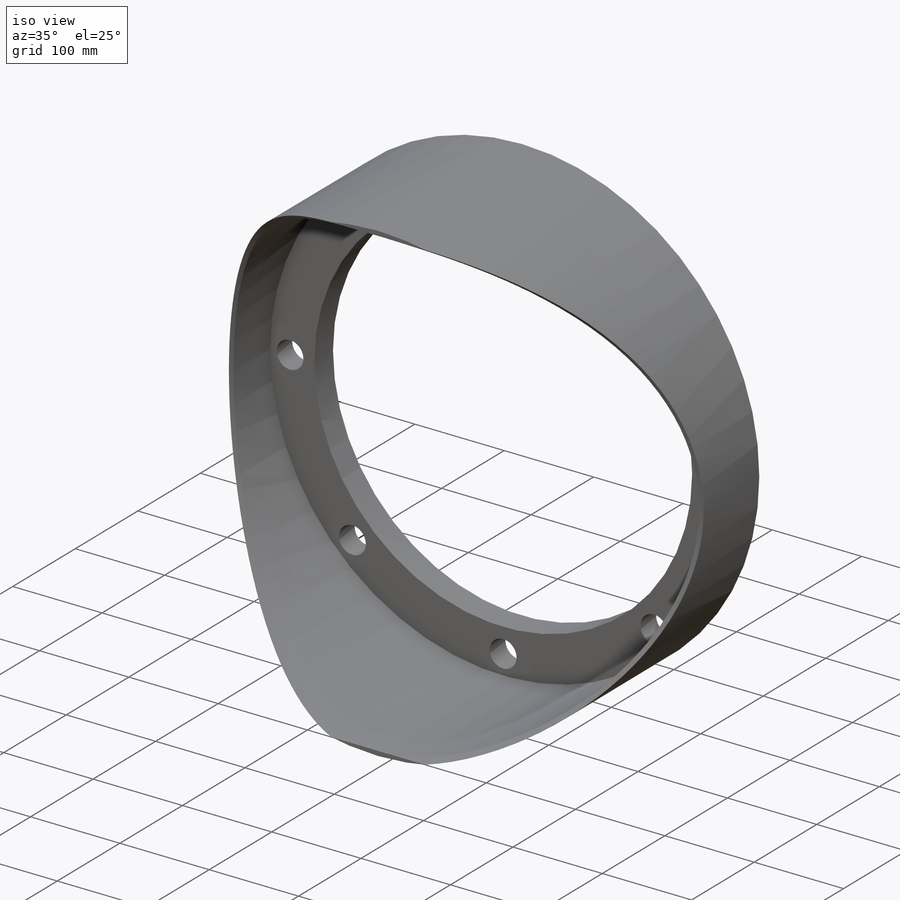
[diagram: iso view]
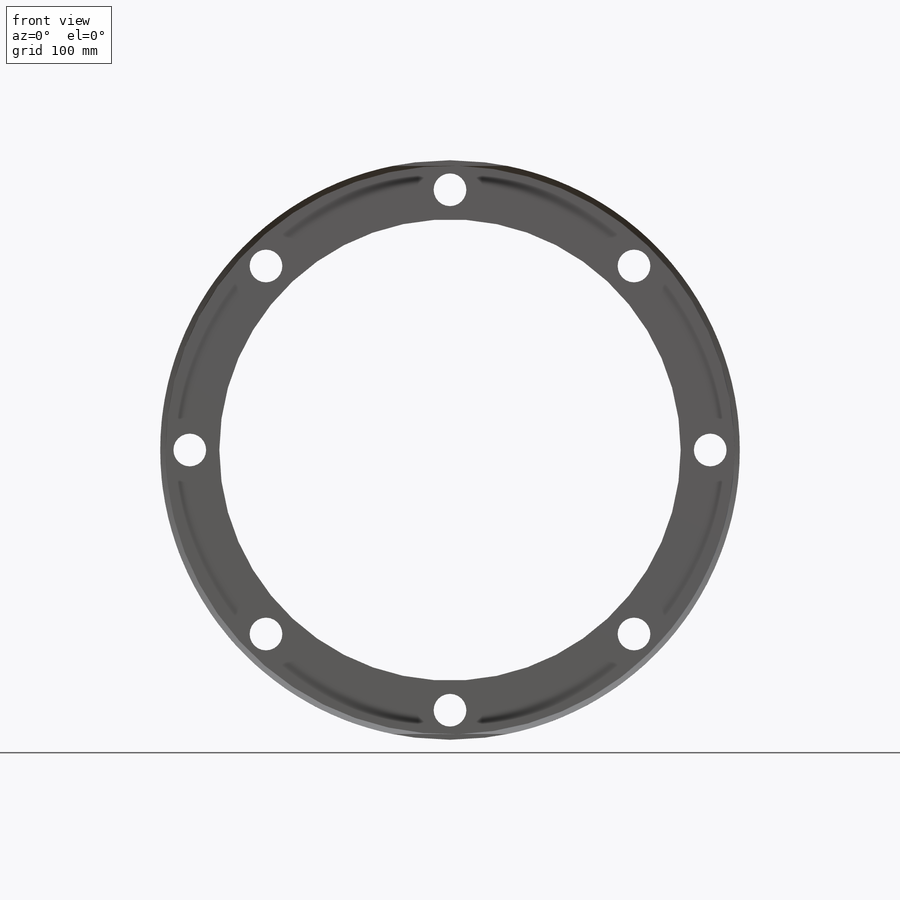
[diagram: front view]
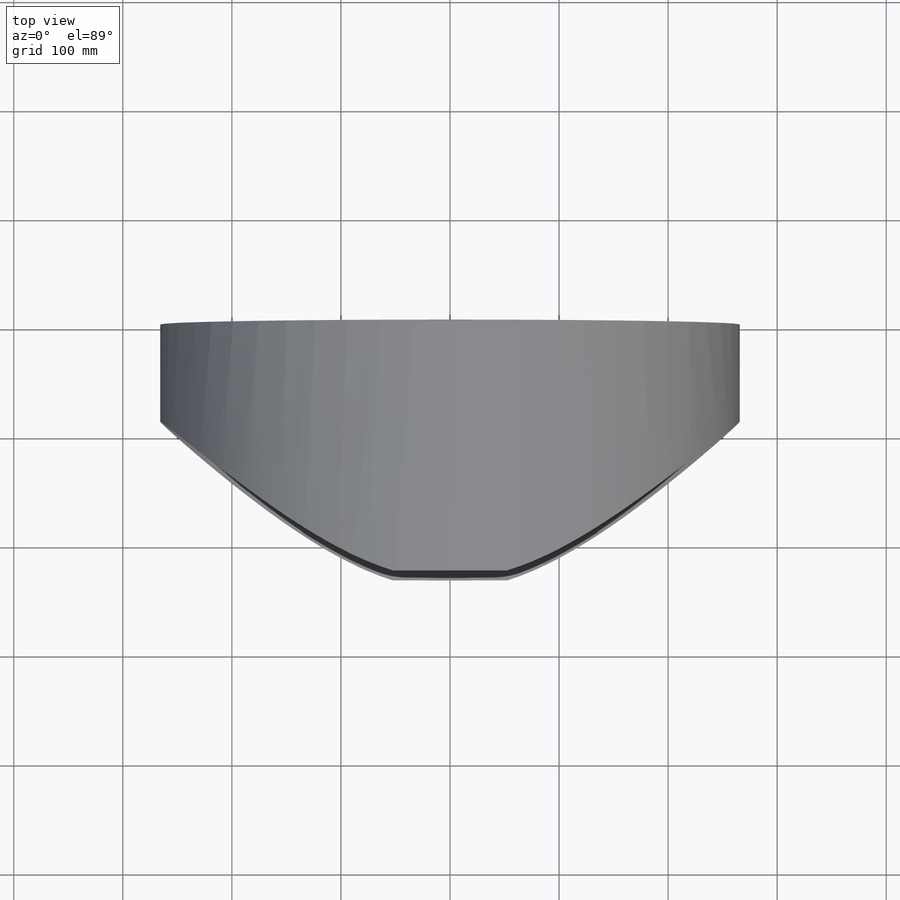
[diagram: top view]
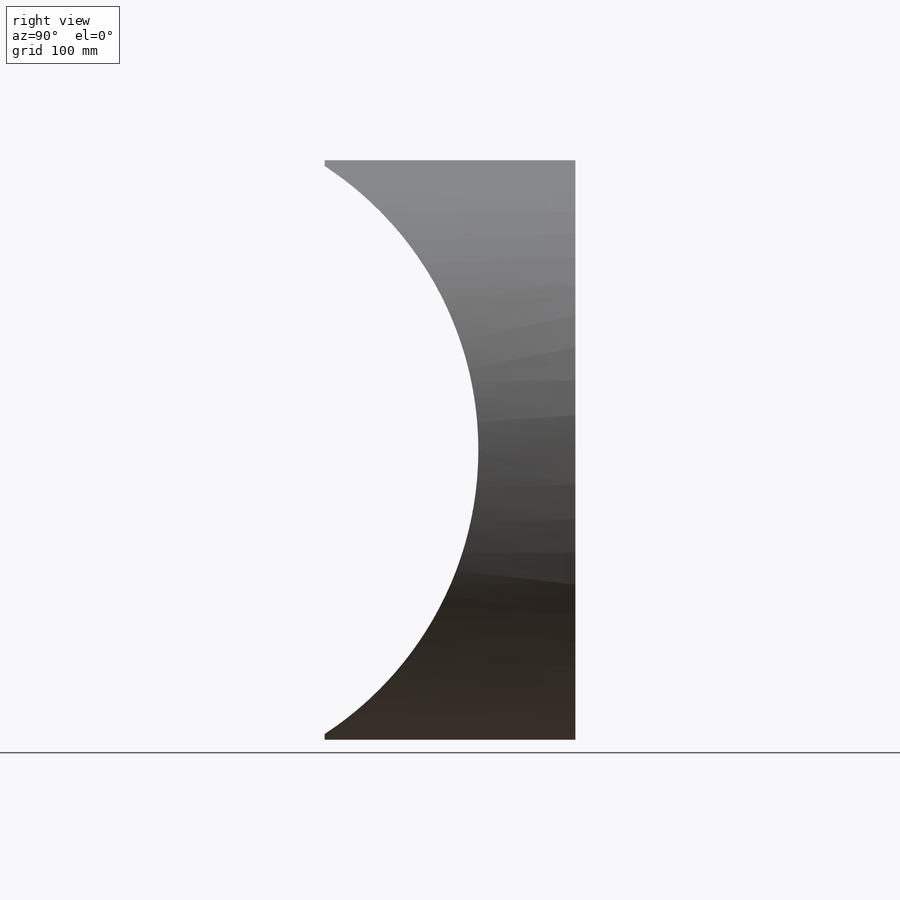
[diagram: right view]
SOLIDWORKS PART (.sldprt)
format: sldprt  version: not decoded by parser v0  size: 280,576 bytes
history: native  units: mm
features: sketch x4, extrude x3, material x1, cut_extrude x1 (+16 scaffold rows collapsed)
feature tree (25):
  scaffold x16  (default folders/planes/origin — collapsed)
  material  "6063-T4"
  sketch  "Sketch1"  dims[c1.D1=~10.62784mm c2.D1=112.5deg]
  extrude  "Extrude1"  Depth=5mm
  sketch  "Sketch2"  dims[D1=~13.819648mm]
  extrude  "Extrude2"  Depth=25mm
  sketch  "Sketch3"  dims[D1=250.7mm]
  extrude  "Extrude3"  Depth=200mm
  sketch  "Sketch4"  dims[D2=~266.413656mm D1=400.0mm]
  cut_extrude  "Extrude4"  [1 undecoded]
decode coverage: 7 of 8 modeling features carry decoded parameters
note: ~ marks probable driven/reference dimensions
note: 1 parameter value undecoded
note: suppression state not decoded; provenance and decode notes live in map.json
